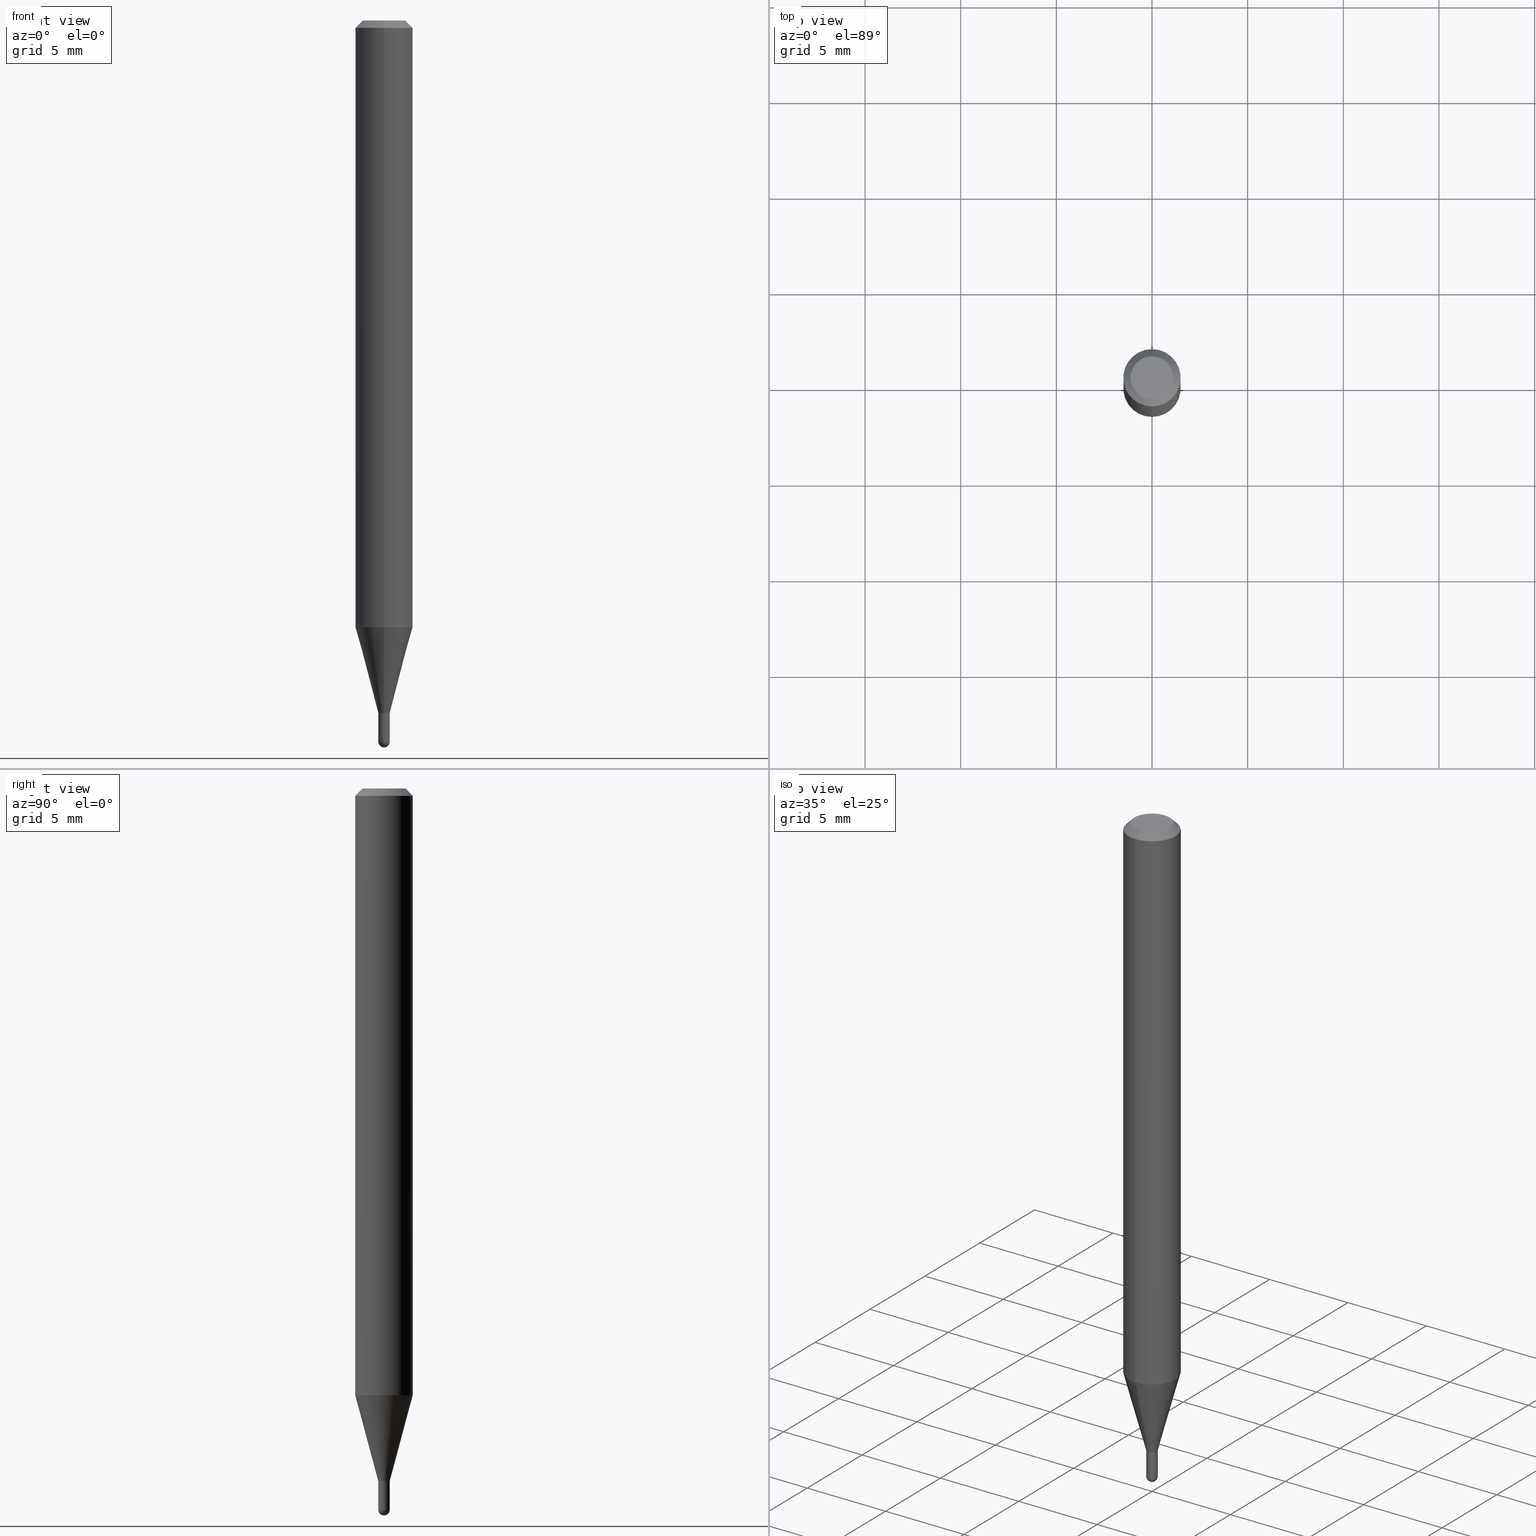
[diagram: canonical four-view strip — front | top / right | iso, engineering-drawing reading convention]
A machine part, canonical four-view strip (front | top / right | iso — engineering-drawing reading convention). The complete STEP part file that produces these views, byte-faithful:
ISO-10303-21;
HEADER;
FILE_DESCRIPTION (( 'STEP AP203' ),
    '1' );
FILE_NAME ('05026.STEP',
    '2024-03-08T20:55:54',
    ( '' ),
    ( '' ),
    'SwSTEP 2.0',
    'SolidWorks 2023',
    '' );
FILE_SCHEMA (( 'CONFIG_CONTROL_DESIGN' ));
ENDSEC;

DATA;
#1 = EDGE_CURVE ( 'NONE', #429, #307, #212, .T. ) ;
#2 = DIRECTION ( 'NONE',  ( -6.982962677686264344E-15, -1.000000000000000000, 3.491527206665560554E-15 ) ) ;
#3 = CARTESIAN_POINT ( 'NONE',  ( 8.206768598032710366E-17, 0.01129999999999502409, -1.425199999999999578 ) ) ;
#4 = VECTOR ( 'NONE', #305, 39.37007874015748143 ) ;
#5 =( CONVERSION_BASED_UNIT ( 'INCH', #327 ) LENGTH_UNIT ( ) NAMED_UNIT ( #169 ) );
#6 = PERSON_AND_ORGANIZATION ( #151, #403 ) ;
#7 = CONICAL_SURFACE ( 'NONE', #109, 0.01179999999999965452, 0.2617993877991572349 ) ;
#8 = LOCAL_TIME ( 15, 55, 54.00000000000000000, #59 ) ;
#9 = CARTESIAN_POINT ( 'NONE',  ( 3.668155165283920015E-31, -5.237290809998369353E-17, -0.01500000000000008098 ) ) ;
#10 = PERSON_AND_ORGANIZATION_ROLE ( 'creator' ) ;
#11 = CARTESIAN_POINT ( 'NONE',  ( 3.484991950697390441E-29, -4.975775422219090776E-15, -1.425100000000000033 ) ) ;
#12 = ORIENTED_EDGE ( 'NONE', *, *, #506, .T. ) ;
#13 = DIRECTION ( 'NONE',  ( -1.000000000000000000, 6.982962677686265922E-15, -4.883557194083112340E-29 ) ) ;
#14 = CARTESIAN_POINT ( 'NONE',  ( 3.629809349020597767E-29, -5.182405751244879809E-15, -1.484299999999999731 ) ) ;
#15 = EDGE_CURVE ( 'NONE', #500, #155, #346, .T. ) ;
#16 = DIRECTION ( 'NONE',  ( -6.982962677686265922E-15, -1.000000000000000000, 3.505890868245046092E-15 ) ) ;
#17 = DATE_TIME_ROLE ( 'creation_date' ) ;
#18 = APPROVAL ( #230, 'UNSPECIFIED' ) ;
#19 = AXIS2_PLACEMENT_3D ( 'NONE', #202, #280, #2 ) ;
#20 = AXIS2_PLACEMENT_3D ( 'NONE', #295, #13, #406 ) ;
#21 = LOCAL_TIME ( 15, 55, 54.00000000000000000, #484 ) ;
#22 = DIRECTION ( 'NONE',  ( -2.445436776855933528E-29, 3.491527206665560554E-15, 1.000000000000000000 ) ) ;
#23 = DIRECTION ( 'NONE',  ( -2.445468806185136597E-29, 3.491481338843145583E-15, 1.000000000000000000 ) ) ;
#24 = APPROVAL_ROLE ( '' ) ;
#25 = ORIENTED_EDGE ( 'NONE', *, *, #404, .F. ) ;
#26 = APPROVAL ( #383, 'UNSPECIFIED' ) ;
#27 = FACE_OUTER_BOUND ( 'NONE', #150, .T. ) ;
#28 = FACE_OUTER_BOUND ( 'NONE', #72, .T. ) ;
#29 = ORIENTED_EDGE ( 'NONE', *, *, #460, .T. ) ;
#30 = LINE ( 'NONE', #430, #388 ) ;
#31 = CIRCLE ( 'NONE', #20, 0.01180000000000006738 ) ;
#32 = ORIENTED_EDGE ( 'NONE', *, *, #407, .F. ) ;
#33 = EDGE_CURVE ( 'NONE', #373, #153, #74, .T. ) ;
#34 = ORIENTED_EDGE ( 'NONE', *, *, #194, .F. ) ;
#35 = DIRECTION ( 'NONE',  ( -2.445468806185136597E-29, 3.491481338843145583E-15, 1.000000000000000000 ) ) ;
#36 = ADVANCED_FACE ( 'NONE', ( #510 ), #361, .F. ) ;
#37 = DIRECTION ( 'NONE',  ( 1.839019923739647647E-15, 0.2588190451025316197, 0.9659258262890653146 ) ) ;
#38 = CARTESIAN_POINT ( 'NONE',  ( 3.485236494375076459E-29, -4.976124574939756323E-15, -1.425199999999999800 ) ) ;
#39 = CIRCLE ( 'NONE', #424, 0.01180000000000000319 ) ;
#40 = ADVANCED_FACE ( 'NONE', ( #160 ), #163, .T. ) ;
#41 = FACE_OUTER_BOUND ( 'NONE', #312, .T. ) ;
#42 = DIRECTION ( 'NONE',  ( 1.000000000000000000, -7.105427357601001070E-15, 4.926315508542082329E-29 ) ) ;
#43 = ADVANCED_FACE ( 'NONE', ( #470 ), #401, .T. ) ;
#44 = DIRECTION ( 'NONE',  ( -2.445468806185136597E-29, 3.491481338843145583E-15, 1.000000000000000000 ) ) ;
#45 = MECHANICAL_CONTEXT ( 'NONE', #308, 'mechanical' ) ;
#46 = CC_DESIGN_SECURITY_CLASSIFICATION ( #216, ( #334 ) ) ;
#47 = CYLINDRICAL_SURFACE ( 'NONE', #19, 0.01179999999999992687 ) ;
#48 = LINE ( 'NONE', #208, #326 ) ;
#49 = PERSON_AND_ORGANIZATION_ROLE ( 'design_owner' ) ;
#50 = ADVANCED_FACE ( 'NONE', ( #133 ), #47, .F. ) ;
#51 = FACE_OUTER_BOUND ( 'NONE', #222, .T. ) ;
#52 = AXIS2_PLACEMENT_3D ( 'NONE', #9, #144, #16 ) ;
#53 = AXIS2_PLACEMENT_3D ( 'NONE', #423, #93, #257 ) ;
#54 = LOCAL_TIME ( 15, 55, 54.00000000000000000, #412 ) ;
#55 = ORIENTED_EDGE ( 'NONE', *, *, #249, .F. ) ;
#56 = DIRECTION ( 'NONE',  ( -6.982962677686265133E-15, -1.000000000000000000, 0.000000000000000000 ) ) ;
#57 = APPROVAL_ROLE ( '' ) ;
#58 = CC_DESIGN_PERSON_AND_ORGANIZATION_ASSIGNMENT ( #262, #10, ( #334 ) ) ;
#59 = COORDINATED_UNIVERSAL_TIME_OFFSET ( 5, 0, .BEHIND. ) ;
#60 = SPHERICAL_SURFACE ( 'NONE', #198, 0.01180000000000006738 ) ;
#61 = CARTESIAN_POINT ( 'NONE',  ( -8.239895959666188559E-17, -0.01180000000000521951, -1.484299999999999731 ) ) ;
#62 = ORIENTED_EDGE ( 'NONE', *, *, #139, .T. ) ;
#63 = SPHERICAL_SURFACE ( 'NONE', #271, 0.01180000000000006738 ) ;
#64 = CALENDAR_DATE ( 2024, 8, 3 ) ;
#65 = AXIS2_PLACEMENT_3D ( 'NONE', #207, #44, #203 ) ;
#66 = ORIENTED_EDGE ( 'NONE', *, *, #407, .T. ) ;
#67 = CIRCLE ( 'NONE', #364, 0.01130000000000000102 ) ;
#68 = PLANE ( 'NONE',  #353 ) ;
#69 = CALENDAR_DATE ( 2024, 8, 3 ) ;
#70 = ORIENTED_EDGE ( 'NONE', *, *, #301, .T. ) ;
#71 = ORIENTED_EDGE ( 'NONE', *, *, #301, .F. ) ;
#72 = EDGE_LOOP ( 'NONE', ( #313, #190, #29, #25 ) ) ;
#73 = ORIENTED_EDGE ( 'NONE', *, *, #181, .T. ) ;
#74 = CIRCLE ( 'NONE', #362, 0.05904999999999999832 ) ;
#75 = AXIS2_PLACEMENT_3D ( 'NONE', #11, #99, #261 ) ;
#76 = ORIENTED_EDGE ( 'NONE', *, *, #15, .T. ) ;
#77 = ORIENTED_EDGE ( 'NONE', *, *, #444, .T. ) ;
#78 = LINE ( 'NONE', #358, #298 ) ;
#79 = CARTESIAN_POINT ( 'NONE',  ( -7.890747825781996314E-17, -0.01130000000000497794, -1.425199999999999578 ) ) ;
#80 = EDGE_CURVE ( 'NONE', #153, #373, #224, .T. ) ;
#81 = CARTESIAN_POINT ( 'NONE',  ( 3.053765095120501030E-29, -4.360081607215893074E-15, -1.248760599342374711 ) ) ;
#82 = CIRCLE ( 'NONE', #172, 0.01180000000000000319 ) ;
#83 = CYLINDRICAL_SURFACE ( 'NONE', #489, 0.01180000000000000319 ) ;
#84 = DIRECTION ( 'NONE',  ( -2.445436776855933528E-29, 3.491527206665560554E-15, 1.000000000000000000 ) ) ;
#85 = CARTESIAN_POINT ( 'NONE',  ( 3.075995059520799729E-16, 0.04404999999999999888, -1.940518418858048862E-16 ) ) ;
#86 = DIRECTION ( 'NONE',  ( 1.000000000000000000, 0.000000000000000000, 0.000000000000000000 ) ) ;
#87 = CIRCLE ( 'NONE', #53, 0.04404999999999999888 ) ;
#88 = DIRECTION ( 'NONE',  ( 0.000000000000000000, 0.000000000000000000, 1.000000000000000000 ) ) ;
#89 = EDGE_CURVE ( 'NONE', #500, #394, #325, .T. ) ;
#90 = ORIENTED_EDGE ( 'NONE', *, *, #181, .F. ) ;
#91 = FACE_OUTER_BOUND ( 'NONE', #349, .T. ) ;
#92 = EDGE_LOOP ( 'NONE', ( #32, #55 ) ) ;
#93 = DIRECTION ( 'NONE',  ( -2.445436776855933528E-29, 3.491527206665560554E-15, 1.000000000000000000 ) ) ;
#94 = EDGE_CURVE ( 'NONE', #95, #236, #288, .T. ) ;
#95 = VERTEX_POINT ( 'NONE', #363 ) ;
#96 = CARTESIAN_POINT ( 'NONE',  ( 3.668155165283920015E-31, -5.237290809998369353E-17, -0.01500000000000008098 ) ) ;
#97 = CONICAL_SURFACE ( 'NONE', #371, 0.01130000000000000102, 0.7853981633980202659 ) ;
#98 = EDGE_CURVE ( 'NONE', #500, #373, #397, .T. ) ;
#99 = DIRECTION ( 'NONE',  ( -2.445436776855933528E-29, 3.491527206665560554E-15, 1.000000000000000000 ) ) ;
#100 = EDGE_LOOP ( 'NONE', ( #302, #235, #454, #140 ) ) ;
#101 = DATE_AND_TIME ( #176, #8 ) ;
#102 = CARTESIAN_POINT ( 'NONE',  ( 0.000000000000000000, 0.000000000000000000, 0.000000000000000000 ) ) ;
#103 = DIRECTION ( 'NONE',  ( -6.982962677686266711E-15, -1.000000000000000000, 0.000000000000000000 ) ) ;
#104 = ADVANCED_BREP_SHAPE_REPRESENTATION ( '05026', ( #256, #255, #137 ), #260 ) ;
#105 = CARTESIAN_POINT ( 'NONE',  ( 3.484013775986648048E-29, -4.974378811336423855E-15, -1.424700000000000077 ) ) ;
#106 = EDGE_LOOP ( 'NONE', ( #384, #76, #504, #427 ) ) ;
#107 = VERTEX_POINT ( 'NONE', #451 ) ;
#108 = ORIENTED_EDGE ( 'NONE', *, *, #417, .F. ) ;
#109 = AXIS2_PLACEMENT_3D ( 'NONE', #457, #22, #103 ) ;
#110 = APPROVAL_DATE_TIME ( #306, #18 ) ;
#111 = ORIENTED_EDGE ( 'NONE', *, *, #460, .F. ) ;
#112 = PRODUCT_DEFINITION_SHAPE ( 'NONE', 'NONE',  #445 ) ;
#113 = ORIENTED_EDGE ( 'NONE', *, *, #89, .T. ) ;
#114 = ORIENTED_EDGE ( 'NONE', *, *, #154, .F. ) ;
#115 = DIRECTION ( 'NONE',  ( -2.445436776855933528E-29, 3.491527206665560554E-15, 1.000000000000000000 ) ) ;
#116 = ADVANCED_FACE ( 'NONE', ( #473 ), #205, .T. ) ;
#117 = DIRECTION ( 'NONE',  ( -6.982962677686265922E-15, -1.000000000000000000, 0.000000000000000000 ) ) ;
#118 = EDGE_LOOP ( 'NONE', ( #505, #292, #114, #183 ) ) ;
#119 = CYLINDRICAL_SURFACE ( 'NONE', #476, 0.05904999999999999832 ) ;
#120 = AXIS2_PLACEMENT_3D ( 'NONE', #440, #199, #439 ) ;
#121 = CC_DESIGN_DATE_AND_TIME_ASSIGNMENT ( #495, #147, ( #216 ) ) ;
#122 = CONICAL_SURFACE ( 'NONE', #180, 0.01130000000000000102, 0.7853981633980202659 ) ;
#123 = DIRECTION ( 'NONE',  ( -2.445436776855933528E-29, 3.491527206665560554E-15, 1.000000000000000000 ) ) ;
#124 = CARTESIAN_POINT ( 'NONE',  ( -3.536586717851222218E-16, -0.04404999999999999888, 7.330163658924400342E-17 ) ) ;
#125 = DIRECTION ( 'NONE',  ( -4.937700262167370586E-15, -0.7071067811869493624, 0.7071067811861454500 ) ) ;
#126 = FACE_OUTER_BOUND ( 'NONE', #92, .T. ) ;
#127 = DIRECTION ( 'NONE',  ( -1.807323732225377077E-15, -0.2588190451025249028, 0.9659258262890670910 ) ) ;
#128 = ADVANCED_FACE ( 'NONE', ( #408 ), #83, .T. ) ;
#129 = AXIS2_PLACEMENT_3D ( 'NONE', #102, #471, #365 ) ;
#130 = VECTOR ( 'NONE', #187, 39.37007874015748143 ) ;
#131 = APPROVAL_PERSON_ORGANIZATION ( #6, #431, #171 ) ;
#132 = CC_DESIGN_APPROVAL ( #431, ( #445 ) ) ;
#133 = FACE_OUTER_BOUND ( 'NONE', #391, .T. ) ;
#134 = ADVANCED_FACE ( 'NONE', ( #419 ), #63, .T. ) ;
#135 = ADVANCED_FACE ( 'NONE', ( #413 ), #7, .T. ) ;
#136 = CLOSED_SHELL ( 'NONE', ( #128, #366, #175, #134, #116 ) ) ;
#137 = AXIS2_PLACEMENT_3D ( 'NONE', #446, #88, #86 ) ;
#138 = EDGE_LOOP ( 'NONE', ( #290, #113, #375, #157 ) ) ;
#139 = EDGE_CURVE ( 'NONE', #193, #95, #487, .T. ) ;
#140 = ORIENTED_EDGE ( 'NONE', *, *, #1, .F. ) ;
#141 = AXIS2_PLACEMENT_3D ( 'NONE', #402, #512, #283 ) ;
#142 = AXIS2_PLACEMENT_3D ( 'NONE', #192, #195, #156 ) ;
#143 = ORIENTED_EDGE ( 'NONE', *, *, #1, .T. ) ;
#144 = DIRECTION ( 'NONE',  ( -2.445436776855933528E-29, 3.491527206665560554E-15, 1.000000000000000000 ) ) ;
#145 = EDGE_LOOP ( 'NONE', ( #240, #196, #468, #315 ) ) ;
#146 = DIRECTION ( 'NONE',  ( 1.000000000000000000, -6.982962677686297476E-15, 0.000000000000000000 ) ) ;
#147 = DATE_TIME_ROLE ( 'classification_date' ) ;
#148 = ORIENTED_EDGE ( 'NONE', *, *, #194, .T. ) ;
#149 = CARTESIAN_POINT ( 'NONE',  ( 3.629809349020597767E-29, -5.182405751244879809E-15, -1.484299999999999731 ) ) ;
#150 = EDGE_LOOP ( 'NONE', ( #265, #269, #73, #276 ) ) ;
#151 = PERSON ( 'UNSPECIFIED', 'UNSPECIFIED', 'UNSPECIFIED', ('UNSPECIFIED'), ('UNSPECIFIED'), ('UNSPECIFIED') ) ;
#152 = CIRCLE ( 'NONE', #75, 0.01179999999999965452 ) ;
#153 = VERTEX_POINT ( 'NONE', #266 ) ;
#154 = EDGE_CURVE ( 'NONE', #396, #459, #215, .T. ) ;
#155 = VERTEX_POINT ( 'NONE', #450 ) ;
#156 = DIRECTION ( 'NONE',  ( -6.982962677686265133E-15, -1.000000000000000000, 3.491527206665560554E-15 ) ) ;
#157 = ORIENTED_EDGE ( 'NONE', *, *, #33, .F. ) ;
#158 = VECTOR ( 'NONE', #229, 39.37007874015748143 ) ;
#159 = LINE ( 'NONE', #322, #463 ) ;
#160 = FACE_OUTER_BOUND ( 'NONE', #467, .T. ) ;
#161 = DIRECTION ( 'NONE',  ( -2.445436776855933528E-29, 3.491527206665560554E-15, 1.000000000000000000 ) ) ;
#162 = CARTESIAN_POINT ( 'NONE',  ( -8.239895959669740898E-17, -0.01179999999999992687, 4.120002103865335861E-17 ) ) ;
#163 = CONICAL_SURFACE ( 'NONE', #141, 0.01179999999999965452, 0.2617993877991572349 ) ;
#164 = CIRCLE ( 'NONE', #278, 0.01180000000000019922 ) ;
#165 = APPROVAL_PERSON_ORGANIZATION ( #499, #26, #57 ) ;
#166 = DIRECTION ( 'NONE',  ( -6.982962677686265922E-15, -1.000000000000000000, 4.626330217890369336E-15 ) ) ;
#167 = EDGE_CURVE ( 'NONE', #459, #396, #285, .T. ) ;
#168 = CARTESIAN_POINT ( 'NONE',  ( 0.000000000000000000, 0.000000000000000000, 0.000000000000000000 ) ) ;
#169 = DIMENSIONAL_EXPONENTS ( 1.000000000000000000, 0.000000000000000000, 0.000000000000000000, 0.000000000000000000, 0.000000000000000000, 0.000000000000000000, 0.000000000000000000 ) ;
#170 = ORIENTED_EDGE ( 'NONE', *, *, #465, .F. ) ;
#171 = APPROVAL_ROLE ( '' ) ;
#172 = AXIS2_PLACEMENT_3D ( 'NONE', #149, #501, #477 ) ;
#173 = EDGE_LOOP ( 'NONE', ( #503, #62, #418, #410, #77 ) ) ;
#174 = FACE_OUTER_BOUND ( 'NONE', #106, .T. ) ;
#175 = ADVANCED_FACE ( 'NONE', ( #51 ), #68, .F. ) ;
#176 = CALENDAR_DATE ( 2024, 8, 3 ) ;
#177 =( LENGTH_UNIT ( ) NAMED_UNIT ( * ) SI_UNIT ( $, .METRE. ) );
#178 = DIRECTION ( 'NONE',  ( -2.445436776855933528E-29, 3.491527206665560554E-15, 1.000000000000000000 ) ) ;
#179 = PERSON_AND_ORGANIZATION_ROLE ( 'design_supplier' ) ;
#180 = AXIS2_PLACEMENT_3D ( 'NONE', #201, #324, #220 ) ;
#181 = EDGE_CURVE ( 'NONE', #232, #459, #270, .T. ) ;
#182 = CARTESIAN_POINT ( 'NONE',  ( 4.123439461173743285E-16, 0.05904999999999994975, -0.01500000000000028741 ) ) ;
#183 = ORIENTED_EDGE ( 'NONE', *, *, #282, .F. ) ;
#184 = DIRECTION ( 'NONE',  ( -6.982962677686265922E-15, -1.000000000000000000, 0.000000000000000000 ) ) ;
#185 = EDGE_CURVE ( 'NONE', #428, #193, #39, .T. ) ;
#186 = DIRECTION ( 'NONE',  ( 1.000000000000000000, -6.982962677686297476E-15, 0.000000000000000000 ) ) ;
#187 = DIRECTION ( 'NONE',  ( -2.445468806185136877E-29, 3.491481338843145188E-15, 1.000000000000000000 ) ) ;
#188 = ORIENTED_EDGE ( 'NONE', *, *, #98, .T. ) ;
#189 = CARTESIAN_POINT ( 'NONE',  ( -8.239895959666068997E-17, -0.01180000000000462970, -1.425100000000000033 ) ) ;
#190 = ORIENTED_EDGE ( 'NONE', *, *, #249, .T. ) ;
#191 = CARTESIAN_POINT ( 'NONE',  ( 3.485236494375075899E-29, -4.976124574939755534E-15, -1.425199999999999578 ) ) ;
#192 = CARTESIAN_POINT ( 'NONE',  ( 1.968579952300760536E-45, -2.810684180022627674E-31, -8.050013686437390955E-17 ) ) ;
#193 = VERTEX_POINT ( 'NONE', #217 ) ;
#194 = EDGE_CURVE ( 'NONE', #294, #232, #87, .T. ) ;
#195 = DIRECTION ( 'NONE',  ( -2.445436776855933528E-29, 3.491527206665560554E-15, 1.000000000000000000 ) ) ;
#196 = ORIENTED_EDGE ( 'NONE', *, *, #33, .T. ) ;
#197 = DIRECTION ( 'NONE',  ( 1.000000000000000000, -6.982962677686298265E-15, 0.000000000000000000 ) ) ;
#198 = AXIS2_PLACEMENT_3D ( 'NONE', #493, #461, #360 ) ;
#199 = DIRECTION ( 'NONE',  ( -2.445436776855933528E-29, 3.491527206665560554E-15, 1.000000000000000000 ) ) ;
#200 = APPLICATION_CONTEXT ( 'configuration controlled 3d designs of mechanical parts and assemblies' ) ;
#201 = CARTESIAN_POINT ( 'NONE',  ( 3.485236494375075899E-29, -4.976124574939755534E-15, -1.425199999999999578 ) ) ;
#202 = CARTESIAN_POINT ( 'NONE',  ( 0.000000000000000000, 0.000000000000000000, 0.000000000000000000 ) ) ;
#203 = DIRECTION ( 'NONE',  ( 1.000000000000000000, -6.982962677686298265E-15, 0.000000000000000000 ) ) ;
#204 = AXIS2_PLACEMENT_3D ( 'NONE', #14, #299, #258 ) ;
#205 = CYLINDRICAL_SURFACE ( 'NONE', #129, 0.01180000000000000319 ) ;
#206 = CC_DESIGN_DATE_AND_TIME_ASSIGNMENT ( #101, #17, ( #445 ) ) ;
#207 = CARTESIAN_POINT ( 'NONE',  ( 3.485282142575056435E-29, -4.976059204119250988E-15, -1.425199999999999800 ) ) ;
#208 = CARTESIAN_POINT ( 'NONE',  ( -7.890747825781996314E-17, -0.01130000000000497794, -1.425199999999999578 ) ) ;
#209 = PERSON_AND_ORGANIZATION ( #151, #403 ) ;
#210 = APPROVAL_STATUS ( 'not_yet_approved' ) ;
#211 = CC_DESIGN_PERSON_AND_ORGANIZATION_ASSIGNMENT ( #209, #49, ( #392 ) ) ;
#212 = CIRCLE ( 'NONE', #214, 0.01180000000000000319 ) ;
#213 = DIRECTION ( 'NONE',  ( -1.000000000000000000, 6.982962677686265922E-15, -4.876176775795935793E-29 ) ) ;
#214 = AXIS2_PLACEMENT_3D ( 'NONE', #228, #23, #186 ) ;
#215 = CIRCLE ( 'NONE', #52, 0.05904999999999999832 ) ;
#216 = SECURITY_CLASSIFICATION ( '', '', #345 ) ;
#217 = CARTESIAN_POINT ( 'NONE',  ( -0.01180000000000000319, -4.995388434862373344E-15, -1.484299999999999731 ) ) ;
#218 = CALENDAR_DATE ( 2024, 8, 3 ) ;
#219 = CARTESIAN_POINT ( 'NONE',  ( 3.657152236601735168E-29, -5.225772855877719767E-15, -1.496099999999999985 ) ) ;
#220 = DIRECTION ( 'NONE',  ( -6.982962677686265922E-15, -1.000000000000000000, 0.000000000000000000 ) ) ;
#221 = EDGE_CURVE ( 'NONE', #435, #429, #31, .T. ) ;
#222 = EDGE_LOOP ( 'NONE', ( #389, #434 ) ) ;
#223 = PERSON_AND_ORGANIZATION ( #151, #403 ) ;
#224 = CIRCLE ( 'NONE', #482, 0.05904999999999999832 ) ;
#225 = EDGE_LOOP ( 'NONE', ( #462, #272, #108, #421 ) ) ;
#226 = CONICAL_SURFACE ( 'NONE', #490, 0.05904999999999999832, 0.7853981633974483900 ) ;
#227 = DIRECTION ( 'NONE',  ( -6.982962677686265133E-15, -1.000000000000000000, 0.000000000000000000 ) ) ;
#228 = CARTESIAN_POINT ( 'NONE',  ( 3.629809349020597767E-29, -5.182405751244879809E-15, -1.484299999999999731 ) ) ;
#229 = DIRECTION ( 'NONE',  ( -2.445468806185136877E-29, 3.491481338843145188E-15, 1.000000000000000000 ) ) ;
#230 = APPROVAL_STATUS ( 'not_yet_approved' ) ;
#231 = DIRECTION ( 'NONE',  ( -2.445468806185136597E-29, 3.491481338843145583E-15, 1.000000000000000000 ) ) ;
#232 = VERTEX_POINT ( 'NONE', #372 ) ;
#233 = DIRECTION ( 'NONE',  ( -2.445436776855933528E-29, 3.491527206665560554E-15, 1.000000000000000000 ) ) ;
#234 = DIRECTION ( 'NONE',  ( 6.982962677686265922E-15, 1.000000000000000000, -3.505890868245046092E-15 ) ) ;
#235 = ORIENTED_EDGE ( 'NONE', *, *, #385, .T. ) ;
#236 = VERTEX_POINT ( 'NONE', #297 ) ;
#237 = AXIS2_PLACEMENT_3D ( 'NONE', #96, #178, #377 ) ;
#238 = DIRECTION ( 'NONE',  ( -4.851104656540964275E-15, -0.7071067811865500152, -0.7071067811865450192 ) ) ;
#239 = LOCAL_TIME ( 15, 55, 54.00000000000000000, #348 ) ;
#240 = ORIENTED_EDGE ( 'NONE', *, *, #339, .F. ) ;
#241 = CARTESIAN_POINT ( 'NONE',  ( 4.195754854663694697E-16, 0.05904999999999562682, -1.248760599342375155 ) ) ;
#242 = DIRECTION ( 'NONE',  ( 2.445436776855933528E-29, -3.491527206665560554E-15, -1.000000000000000000 ) ) ;
#243 = ADVANCED_FACE ( 'NONE', ( #174 ), #335, .F. ) ;
#244 = CARTESIAN_POINT ( 'NONE',  ( 8.384404281972835410E-17, 0.01179999999999485107, -1.484299999999999731 ) ) ;
#245 = DIRECTION ( 'NONE',  ( -6.982962677686265922E-15, -1.000000000000000000, 3.491527206665560554E-15 ) ) ;
#246 = DIRECTION ( 'NONE',  ( -6.982962677686266711E-15, -1.000000000000000000, 0.000000000000000000 ) ) ;
#247 = ORIENTED_EDGE ( 'NONE', *, *, #359, .T. ) ;
#248 = DIRECTION ( 'NONE',  ( -2.445436776855933247E-29, 3.491527206665560554E-15, 1.000000000000000000 ) ) ;
#249 = EDGE_CURVE ( 'NONE', #387, #464, #67, .T. ) ;
#250 = DIRECTION ( 'NONE',  ( 6.982962677686265922E-15, 1.000000000000000000, -3.491527206665560554E-15 ) ) ;
#251 = CONICAL_SURFACE ( 'NONE', #289, 0.05904999999999999832, 0.7853981633974483900 ) ;
#252 = CARTESIAN_POINT ( 'NONE',  ( 2.517097641430470322E-16, 0.01179999999999467933, -1.425100000000000033 ) ) ;
#253 = APPLICATION_PROTOCOL_DEFINITION ( 'international standard', 'config_control_design', 1994, #308 ) ;
#254 = CC_DESIGN_PERSON_AND_ORGANIZATION_ASSIGNMENT ( #342, #492, ( #216 ) ) ;
#255 = MANIFOLD_SOLID_BREP ( 'Body-Move/Copy2[2]', #508 ) ;
#256 = MANIFOLD_SOLID_BREP ( 'Body-Move/Copy2[1]', #136 ) ;
#257 = DIRECTION ( 'NONE',  ( -6.982962677686265133E-15, -1.000000000000000000, 3.491527206665560554E-15 ) ) ;
#258 = DIRECTION ( 'NONE',  ( 1.000000000000000000, -6.982962677686297476E-15, 0.000000000000000000 ) ) ;
#259 = CIRCLE ( 'NONE', #204, 0.01180000000000000319 ) ;
#260 =( GEOMETRIC_REPRESENTATION_CONTEXT ( 3 ) GLOBAL_UNCERTAINTY_ASSIGNED_CONTEXT ( ( #369 ) ) GLOBAL_UNIT_ASSIGNED_CONTEXT ( ( #5, #367, #405 ) ) REPRESENTATION_CONTEXT ( 'NONE', 'WORKASPACE' ) );
#261 = DIRECTION ( 'NONE',  ( -6.982962677686266711E-15, -1.000000000000000000, 0.000000000000000000 ) ) ;
#262 = PERSON_AND_ORGANIZATION ( #151, #403 ) ;
#263 = CARTESIAN_POINT ( 'NONE',  ( 4.195754854663698641E-16, 0.05904999999999994975, -0.01500000000000028741 ) ) ;
#264 = LINE ( 'NONE', #415, #130 ) ;
#265 = ORIENTED_EDGE ( 'NONE', *, *, #359, .F. ) ;
#266 = CARTESIAN_POINT ( 'NONE',  ( -4.123439461173436122E-16, -0.05905000000000436289, -1.248760599342374489 ) ) ;
#267 = EDGE_CURVE ( 'NONE', #236, #95, #273, .T. ) ;
#268 = PERSON_AND_ORGANIZATION_ROLE ( 'creator' ) ;
#269 = ORIENTED_EDGE ( 'NONE', *, *, #368, .F. ) ;
#270 = LINE ( 'NONE', #182, #4 ) ;
#271 = AXIS2_PLACEMENT_3D ( 'NONE', #374, #344, #56 ) ;
#272 = ORIENTED_EDGE ( 'NONE', *, *, #221, .T. ) ;
#273 = CIRCLE ( 'NONE', #284, 0.01180000000000000146 ) ;
#274 = ORIENTED_EDGE ( 'NONE', *, *, #465, .T. ) ;
#275 = DIRECTION ( 'NONE',  ( -2.445436776855933528E-29, 3.491527206665560554E-15, 1.000000000000000000 ) ) ;
#276 = ORIENTED_EDGE ( 'NONE', *, *, #167, .T. ) ;
#277 = CARTESIAN_POINT ( 'NONE',  ( 0.000000000000000000, 0.000000000000000000, 0.000000000000000000 ) ) ;
#278 = AXIS2_PLACEMENT_3D ( 'NONE', #323, #475, #400 ) ;
#279 = DIRECTION ( 'NONE',  ( -6.982962677686265922E-15, -1.000000000000000000, 0.000000000000000000 ) ) ;
#280 = DIRECTION ( 'NONE',  ( -2.445436776855933528E-29, 3.491527206665560554E-15, 1.000000000000000000 ) ) ;
#281 = ADVANCED_FACE ( 'NONE', ( #28 ), #97, .T. ) ;
#282 = EDGE_CURVE ( 'NONE', #153, #396, #78, .T. ) ;
#283 = DIRECTION ( 'NONE',  ( -6.982962677686266711E-15, -1.000000000000000000, 0.000000000000000000 ) ) ;
#284 = AXIS2_PLACEMENT_3D ( 'NONE', #432, #35, #197 ) ;
#285 = CIRCLE ( 'NONE', #237, 0.05904999999999999832 ) ;
#286 = DIRECTION ( 'NONE',  ( 2.445436776855933247E-29, -3.491527206665560554E-15, -1.000000000000000000 ) ) ;
#287 = EDGE_CURVE ( 'NONE', #387, #155, #159, .T. ) ;
#288 = CIRCLE ( 'NONE', #65, 0.01180000000000000146 ) ;
#289 = AXIS2_PLACEMENT_3D ( 'NONE', #498, #422, #351 ) ;
#290 = ORIENTED_EDGE ( 'NONE', *, *, #98, .F. ) ;
#291 = DIRECTION ( 'NONE',  ( -2.445436776855933247E-29, 3.491527206665560554E-15, 1.000000000000000000 ) ) ;
#292 = ORIENTED_EDGE ( 'NONE', *, *, #339, .T. ) ;
#293 = CALENDAR_DATE ( 2024, 8, 3 ) ;
#294 = VERTEX_POINT ( 'NONE', #124 ) ;
#295 = CARTESIAN_POINT ( 'NONE',  ( 3.628800252799366100E-29, -5.183850834467873739E-15, -1.484299999999999731 ) ) ;
#296 = ORIENTED_EDGE ( 'NONE', *, *, #15, .F. ) ;
#297 = CARTESIAN_POINT ( 'NONE',  ( 0.01180000000000000146, -5.058458163715949112E-15, -1.425199999999999800 ) ) ;
#298 = VECTOR ( 'NONE', #507, 39.37007874015748143 ) ;
#299 = DIRECTION ( 'NONE',  ( -2.445468806185136597E-29, 3.491481338843145583E-15, 1.000000000000000000 ) ) ;
#300 = CC_DESIGN_APPROVAL ( #18, ( #216 ) ) ;
#301 = EDGE_CURVE ( 'NONE', #394, #500, #152, .T. ) ;
#302 = ORIENTED_EDGE ( 'NONE', *, *, #221, .F. ) ;
#303 = APPROVAL_DATE_TIME ( #376, #26 ) ;
#304 = DESIGN_CONTEXT ( 'detailed design', #200, 'design' ) ;
#305 = DIRECTION ( 'NONE',  ( 4.937700262164548042E-15, 0.7071067811865451302, -0.7071067811865499042 ) ) ;
#306 = DATE_AND_TIME ( #69, #239 ) ;
#307 = VERTEX_POINT ( 'NONE', #456 ) ;
#308 = APPLICATION_CONTEXT ( 'configuration controlled 3d designs of mechanical parts and assemblies' ) ;
#309 = EDGE_CURVE ( 'NONE', #307, #236, #264, .T. ) ;
#310 = EDGE_LOOP ( 'NONE', ( #318, #481, #143, #380, #486 ) ) ;
#311 = AXIS2_PLACEMENT_3D ( 'NONE', #485, #338, #455 ) ;
#312 = EDGE_LOOP ( 'NONE', ( #66, #496, #170, #111 ) ) ;
#313 = ORIENTED_EDGE ( 'NONE', *, *, #287, .F. ) ;
#314 = CARTESIAN_POINT ( 'NONE',  ( 3.485236494375075899E-29, -4.976124574939755534E-15, -1.425199999999999578 ) ) ;
#315 = ORIENTED_EDGE ( 'NONE', *, *, #167, .F. ) ;
#316 = FACE_OUTER_BOUND ( 'NONE', #118, .T. ) ;
#317 = DIRECTION ( 'NONE',  ( -2.445436776855933528E-29, 3.491527206665560554E-15, 1.000000000000000000 ) ) ;
#318 = ORIENTED_EDGE ( 'NONE', *, *, #139, .F. ) ;
#319 = CARTESIAN_POINT ( 'NONE',  ( 3.628800252799366100E-29, -5.183850834467873739E-15, -1.484299999999999731 ) ) ;
#320 = CIRCLE ( 'NONE', #142, 0.04404999999999999888 ) ;
#321 = PRODUCT_RELATED_PRODUCT_CATEGORY ( 'detail', '', ( #392 ) ) ;
#322 = CARTESIAN_POINT ( 'NONE',  ( 8.029132914092616136E-17, 0.01129999999999502409, -1.425199999999999578 ) ) ;
#323 = CARTESIAN_POINT ( 'NONE',  ( 3.484013775986648048E-29, -4.974378811336423855E-15, -1.424700000000000077 ) ) ;
#324 = DIRECTION ( 'NONE',  ( -2.445436776855933528E-29, 3.491527206665560554E-15, 1.000000000000000000 ) ) ;
#325 = CIRCLE ( 'NONE', #398, 0.01179999999999965452 ) ;
#326 = VECTOR ( 'NONE', #125, 39.37007874015748854 ) ;
#327 = LENGTH_MEASURE_WITH_UNIT ( LENGTH_MEASURE( 0.02539999999999999897 ), #177 );
#328 = CARTESIAN_POINT ( 'NONE',  ( 8.384404281972420026E-17, 0.01179999999999467933, -1.425100000000000033 ) ) ;
#329 = DIRECTION ( 'NONE',  ( -2.445436776855933247E-29, 3.491527206665560554E-15, 1.000000000000000000 ) ) ;
#330 = AXIS2_PLACEMENT_3D ( 'NONE', #85, #286, #250 ) ;
#331 = CC_DESIGN_PERSON_AND_ORGANIZATION_ASSIGNMENT ( #336, #268, ( #445 ) ) ;
#332 = CIRCLE ( 'NONE', #399, 0.01180000000000019922 ) ;
#333 = LINE ( 'NONE', #162, #341 ) ;
#334 = PRODUCT_DEFINITION_FORMATION_WITH_SPECIFIED_SOURCE ( 'ANY', '', #392, .NOT_KNOWN. ) ;
#335 = CYLINDRICAL_SURFACE ( 'NONE', #311, 0.01179999999999992687 ) ;
#336 = PERSON_AND_ORGANIZATION ( #151, #403 ) ;
#337 = ORIENTED_EDGE ( 'NONE', *, *, #80, .F. ) ;
#338 = DIRECTION ( 'NONE',  ( -2.445436776855933528E-29, 3.491527206665560554E-15, 1.000000000000000000 ) ) ;
#339 = EDGE_CURVE ( 'NONE', #373, #459, #347, .T. ) ;
#340 = DIRECTION ( 'NONE',  ( 2.438088387897960049E-29, -3.491481338843145188E-15, -1.000000000000000000 ) ) ;
#341 = VECTOR ( 'NONE', #248, 39.37007874015748143 ) ;
#342 = PERSON_AND_ORGANIZATION ( #151, #403 ) ;
#343 = DIRECTION ( 'NONE',  ( -6.982962677686265922E-15, -1.000000000000000000, 3.491527206665560159E-15 ) ) ;
#344 = DIRECTION ( 'NONE',  ( 1.000000000000000000, -6.982962677686265133E-15, 4.883557194083112340E-29 ) ) ;
#345 = SECURITY_CLASSIFICATION_LEVEL ( 'unclassified' ) ;
#346 = LINE ( 'NONE', #466, #352 ) ;
#347 = LINE ( 'NONE', #497, #378 ) ;
#348 = COORDINATED_UNIVERSAL_TIME_OFFSET ( 5, 0, .BEHIND. ) ;
#349 = EDGE_LOOP ( 'NONE', ( #34, #247, #448, #90 ) ) ;
#350 = CARTESIAN_POINT ( 'NONE',  ( 3.053765095120501030E-29, -4.360081607215893074E-15, -1.248760599342374711 ) ) ;
#351 = DIRECTION ( 'NONE',  ( 6.982962677686265922E-15, 1.000000000000000000, -3.505890868245046092E-15 ) ) ;
#352 = VECTOR ( 'NONE', #386, 39.37007874015748143 ) ;
#353 = AXIS2_PLACEMENT_3D ( 'NONE', #411, #340, #213 ) ;
#354 = ORIENTED_EDGE ( 'NONE', *, *, #368, .T. ) ;
#355 = LOCAL_TIME ( 15, 55, 54.00000000000000000, #416 ) ;
#356 = ORIENTED_EDGE ( 'NONE', *, *, #426, .F. ) ;
#357 = ADVANCED_FACE ( 'NONE', ( #91 ), #226, .T. ) ;
#358 = CARTESIAN_POINT ( 'NONE',  ( -4.123439461173739834E-16, -0.05904999999999999832, 2.061746815536013292E-16 ) ) ;
#359 = EDGE_CURVE ( 'NONE', #294, #396, #30, .T. ) ;
#360 = DIRECTION ( 'NONE',  ( -6.982962677686265133E-15, -1.000000000000000000, 0.000000000000000000 ) ) ;
#361 = PLANE ( 'NONE',  #330 ) ;
#362 = AXIS2_PLACEMENT_3D ( 'NONE', #350, #275, #166 ) ;
#363 = CARTESIAN_POINT ( 'NONE',  ( -0.01180000000000000146, -4.995388434862373344E-15, -1.425199999999999800 ) ) ;
#364 = AXIS2_PLACEMENT_3D ( 'NONE', #314, #437, #117 ) ;
#365 = DIRECTION ( 'NONE',  ( 1.000000000000000000, -6.982962677686265922E-15, 4.876176775795935793E-29 ) ) ;
#366 = ADVANCED_FACE ( 'NONE', ( #443 ), #60, .T. ) ;
#367 =( NAMED_UNIT ( * ) PLANE_ANGLE_UNIT ( ) SI_UNIT ( $, .RADIAN. ) );
#368 = EDGE_CURVE ( 'NONE', #232, #294, #320, .T. ) ;
#369 = UNCERTAINTY_MEASURE_WITH_UNIT (LENGTH_MEASURE( 1.000000000000000082E-05 ), #5, 'distance_accuracy_value', 'NONE');
#370 = APPLICATION_PROTOCOL_DEFINITION ( 'international standard', 'config_control_design', 1994, #200 ) ;
#371 = AXIS2_PLACEMENT_3D ( 'NONE', #191, #123, #279 ) ;
#372 = CARTESIAN_POINT ( 'NONE',  ( 3.599717260347271507E-16, 0.04404999999999999888, -2.343019103179918348E-16 ) ) ;
#373 = VERTEX_POINT ( 'NONE', #241 ) ;
#374 = CARTESIAN_POINT ( 'NONE',  ( 3.628800252799366100E-29, -5.183850834467873739E-15, -1.484299999999999731 ) ) ;
#375 = ORIENTED_EDGE ( 'NONE', *, *, #426, .T. ) ;
#376 = DATE_AND_TIME ( #218, #54 ) ;
#377 = DIRECTION ( 'NONE',  ( -6.982962677686265922E-15, -1.000000000000000000, 3.505890868245046092E-15 ) ) ;
#378 = VECTOR ( 'NONE', #291, 39.37007874015748143 ) ;
#379 = SHAPE_DEFINITION_REPRESENTATION ( #112, #104 ) ;
#380 = ORIENTED_EDGE ( 'NONE', *, *, #309, .T. ) ;
#381 = ADVANCED_FACE ( 'NONE', ( #126 ), #438, .F. ) ;
#382 = CARTESIAN_POINT ( 'NONE',  ( 3.485236494375075899E-29, -4.976124574939755534E-15, -1.425199999999999578 ) ) ;
#383 = APPROVAL_STATUS ( 'not_yet_approved' ) ;
#384 = ORIENTED_EDGE ( 'NONE', *, *, #89, .F. ) ;
#385 = EDGE_CURVE ( 'NONE', #435, #428, #409, .T. ) ;
#386 = DIRECTION ( 'NONE',  ( -2.445436776855933247E-29, 3.491527206665560554E-15, 1.000000000000000000 ) ) ;
#387 = VERTEX_POINT ( 'NONE', #3 ) ;
#388 = VECTOR ( 'NONE', #238, 39.37007874015748143 ) ;
#389 = ORIENTED_EDGE ( 'NONE', *, *, #267, .T. ) ;
#390 = CARTESIAN_POINT ( 'NONE',  ( -4.123439461173736383E-16, -0.05905000000000005383, -0.01499999999999987454 ) ) ;
#391 = EDGE_LOOP ( 'NONE', ( #296, #71, #12, #274 ) ) ;
#392 = PRODUCT ( '05026', '05026', '', ( #45 ) ) ;
#393 = ADVANCED_FACE ( 'NONE', ( #316 ), #119, .T. ) ;
#394 = VERTEX_POINT ( 'NONE', #189 ) ;
#395 = LINE ( 'NONE', #474, #452 ) ;
#396 = VERTEX_POINT ( 'NONE', #390 ) ;
#397 = LINE ( 'NONE', #328, #420 ) ;
#398 = AXIS2_PLACEMENT_3D ( 'NONE', #442, #84, #246 ) ;
#399 = AXIS2_PLACEMENT_3D ( 'NONE', #105, #317, #227 ) ;
#400 = DIRECTION ( 'NONE',  ( -6.982962677686265133E-15, -1.000000000000000000, 0.000000000000000000 ) ) ;
#401 = CYLINDRICAL_SURFACE ( 'NONE', #120, 0.05904999999999999832 ) ;
#402 = CARTESIAN_POINT ( 'NONE',  ( 3.484991950697390441E-29, -4.975775422219090776E-15, -1.425100000000000033 ) ) ;
#403 = ORGANIZATION ( 'UNSPECIFIED', 'UNSPECIFIED', '' ) ;
#404 = EDGE_CURVE ( 'NONE', #155, #107, #332, .T. ) ;
#405 =( NAMED_UNIT ( * ) SI_UNIT ( $, .STERADIAN. ) SOLID_ANGLE_UNIT ( ) );
#406 = DIRECTION ( 'NONE',  ( -6.982962677686265133E-15, -1.000000000000000000, 0.000000000000000000 ) ) ;
#407 = EDGE_CURVE ( 'NONE', #464, #387, #433, .T. ) ;
#408 = FACE_OUTER_BOUND ( 'NONE', #173, .T. ) ;
#409 = CIRCLE ( 'NONE', #483, 0.01180000000000006738 ) ;
#410 = ORIENTED_EDGE ( 'NONE', *, *, #309, .F. ) ;
#411 = CARTESIAN_POINT ( 'NONE',  ( 8.239895959673279679E-17, 0.01179999999999502280, -1.425199999999999800 ) ) ;
#412 = COORDINATED_UNIVERSAL_TIME_OFFSET ( 5, 0, .BEHIND. ) ;
#413 = FACE_OUTER_BOUND ( 'NONE', #138, .T. ) ;
#414 = PERSON_AND_ORGANIZATION ( #151, #403 ) ;
#415 = CARTESIAN_POINT ( 'NONE',  ( 0.01180000000000000319, -8.239895959669796365E-17, 5.753888595439205651E-31 ) ) ;
#416 = COORDINATED_UNIVERSAL_TIME_OFFSET ( 5, 0, .BEHIND. ) ;
#417 = EDGE_CURVE ( 'NONE', #193, #429, #82, .T. ) ;
#418 = ORIENTED_EDGE ( 'NONE', *, *, #267, .F. ) ;
#419 = FACE_OUTER_BOUND ( 'NONE', #225, .T. ) ;
#420 = VECTOR ( 'NONE', #37, 39.37007874015748854 ) ;
#421 = ORIENTED_EDGE ( 'NONE', *, *, #185, .F. ) ;
#422 = DIRECTION ( 'NONE',  ( 2.445436776855933528E-29, -3.491527206665560554E-15, -1.000000000000000000 ) ) ;
#423 = CARTESIAN_POINT ( 'NONE',  ( 1.968579952300760536E-45, -2.810684180022627674E-31, -8.050013686437390955E-17 ) ) ;
#424 = AXIS2_PLACEMENT_3D ( 'NONE', #449, #494, #146 ) ;
#425 = EDGE_LOOP ( 'NONE', ( #354, #148 ) ) ;
#426 = EDGE_CURVE ( 'NONE', #394, #153, #395, .T. ) ;
#427 = ORIENTED_EDGE ( 'NONE', *, *, #506, .F. ) ;
#428 = VERTEX_POINT ( 'NONE', #244 ) ;
#429 = VERTEX_POINT ( 'NONE', #61 ) ;
#430 = CARTESIAN_POINT ( 'NONE',  ( -4.051124067684085231E-16, -0.05905000000000005383, -0.01499999999999987454 ) ) ;
#431 = APPROVAL ( #210, 'UNSPECIFIED' ) ;
#432 = CARTESIAN_POINT ( 'NONE',  ( 3.485282142575056435E-29, -4.976059204119250988E-15, -1.425199999999999800 ) ) ;
#433 = CIRCLE ( 'NONE', #509, 0.01130000000000000102 ) ;
#434 = ORIENTED_EDGE ( 'NONE', *, *, #94, .T. ) ;
#435 = VERTEX_POINT ( 'NONE', #219 ) ;
#436 = CARTESIAN_POINT ( 'NONE',  ( 3.668155165283920015E-31, -5.237290809998369353E-17, -0.01500000000000008098 ) ) ;
#437 = DIRECTION ( 'NONE',  ( -2.445436776855933528E-29, 3.491527206665560554E-15, 1.000000000000000000 ) ) ;
#438 = PLANE ( 'NONE',  #502 ) ;
#439 = DIRECTION ( 'NONE',  ( -6.982962677686265922E-15, -1.000000000000000000, 3.491527206665560159E-15 ) ) ;
#440 = CARTESIAN_POINT ( 'NONE',  ( 0.000000000000000000, 0.000000000000000000, 0.000000000000000000 ) ) ;
#441 = DIRECTION ( 'NONE',  ( 1.000000000000000000, -6.982962677686265922E-15, 4.876176775795935793E-29 ) ) ;
#442 = CARTESIAN_POINT ( 'NONE',  ( 3.484991950697390441E-29, -4.975775422219090776E-15, -1.425100000000000033 ) ) ;
#443 = FACE_OUTER_BOUND ( 'NONE', #100, .T. ) ;
#444 = EDGE_CURVE ( 'NONE', #307, #428, #259, .T. ) ;
#445 = PRODUCT_DEFINITION ( 'UNKNOWN', '', #334, #304 ) ;
#446 = CARTESIAN_POINT ( 'NONE',  ( 0.000000000000000000, 0.000000000000000000, 0.000000000000000000 ) ) ;
#447 = CC_DESIGN_APPROVAL ( #26, ( #334 ) ) ;
#448 = ORIENTED_EDGE ( 'NONE', *, *, #154, .T. ) ;
#449 = CARTESIAN_POINT ( 'NONE',  ( 3.629809349020597767E-29, -5.182405751244879809E-15, -1.484299999999999731 ) ) ;
#450 = CARTESIAN_POINT ( 'NONE',  ( 8.384404281972778711E-17, 0.01179999999999518413, -1.424700000000000077 ) ) ;
#451 = CARTESIAN_POINT ( 'NONE',  ( -8.239895959666476986E-17, -0.01180000000000521430, -1.424700000000000077 ) ) ;
#452 = VECTOR ( 'NONE', #127, 39.37007874015748143 ) ;
#453 = APPROVAL_PERSON_ORGANIZATION ( #223, #18, #24 ) ;
#454 = ORIENTED_EDGE ( 'NONE', *, *, #444, .F. ) ;
#455 = DIRECTION ( 'NONE',  ( -6.982962677686264344E-15, -1.000000000000000000, 3.491527206665560554E-15 ) ) ;
#456 = CARTESIAN_POINT ( 'NONE',  ( 0.01180000000000000319, -5.161631437278763522E-15, -1.484299999999999731 ) ) ;
#457 = CARTESIAN_POINT ( 'NONE',  ( 3.484991950697390441E-29, -4.975775422219090776E-15, -1.425100000000000033 ) ) ;
#458 = APPROVAL_DATE_TIME ( #488, #431 ) ;
#459 = VERTEX_POINT ( 'NONE', #263 ) ;
#460 = EDGE_CURVE ( 'NONE', #464, #107, #48, .T. ) ;
#461 = DIRECTION ( 'NONE',  ( 1.000000000000000000, -6.982962677686265133E-15, 4.883557194083112340E-29 ) ) ;
#462 = ORIENTED_EDGE ( 'NONE', *, *, #385, .F. ) ;
#463 = VECTOR ( 'NONE', #472, 39.37007874015748854 ) ;
#464 = VERTEX_POINT ( 'NONE', #79 ) ;
#465 = EDGE_CURVE ( 'NONE', #107, #155, #164, .T. ) ;
#466 = CARTESIAN_POINT ( 'NONE',  ( 8.384404281969127764E-17, 0.01179999999999992687, -4.120002103865335861E-17 ) ) ;
#467 = EDGE_LOOP ( 'NONE', ( #70, #188, #337, #356 ) ) ;
#468 = ORIENTED_EDGE ( 'NONE', *, *, #282, .T. ) ;
#469 = DIRECTION ( 'NONE',  ( 7.105427357600999492E-15, 1.000000000000000000, 0.000000000000000000 ) ) ;
#470 = FACE_OUTER_BOUND ( 'NONE', #145, .T. ) ;
#471 = DIRECTION ( 'NONE',  ( -2.445468806185136597E-29, 3.491481338843145583E-15, 1.000000000000000000 ) ) ;
#472 = DIRECTION ( 'NONE',  ( 5.024295867790934632E-15, 0.7071067811869542474, 0.7071067811861405650 ) ) ;
#473 = FACE_OUTER_BOUND ( 'NONE', #310, .T. ) ;
#474 = CARTESIAN_POINT ( 'NONE',  ( -8.239895959666068997E-17, -0.01180000000000462970, -1.425100000000000033 ) ) ;
#475 = DIRECTION ( 'NONE',  ( -2.445436776855933528E-29, 3.491527206665560554E-15, 1.000000000000000000 ) ) ;
#476 = AXIS2_PLACEMENT_3D ( 'NONE', #277, #115, #343 ) ;
#477 = DIRECTION ( 'NONE',  ( 1.000000000000000000, -6.982962677686297476E-15, 0.000000000000000000 ) ) ;
#478 = DIRECTION ( 'NONE',  ( -6.982962677686265922E-15, -1.000000000000000000, 4.626330217890369336E-15 ) ) ;
#479 = CC_DESIGN_PERSON_AND_ORGANIZATION_ASSIGNMENT ( #414, #179, ( #334 ) ) ;
#480 = ADVANCED_FACE ( 'NONE', ( #41 ), #122, .T. ) ;
#481 = ORIENTED_EDGE ( 'NONE', *, *, #417, .T. ) ;
#482 = AXIS2_PLACEMENT_3D ( 'NONE', #81, #161, #478 ) ;
#483 = AXIS2_PLACEMENT_3D ( 'NONE', #319, #42, #469 ) ;
#484 = COORDINATED_UNIVERSAL_TIME_OFFSET ( 5, 0, .BEHIND. ) ;
#485 = CARTESIAN_POINT ( 'NONE',  ( 0.000000000000000000, 0.000000000000000000, 0.000000000000000000 ) ) ;
#486 = ORIENTED_EDGE ( 'NONE', *, *, #94, .F. ) ;
#487 = LINE ( 'NONE', #491, #158 ) ;
#488 = DATE_AND_TIME ( #293, #21 ) ;
#489 = AXIS2_PLACEMENT_3D ( 'NONE', #168, #231, #441 ) ;
#490 = AXIS2_PLACEMENT_3D ( 'NONE', #436, #242, #234 ) ;
#491 = CARTESIAN_POINT ( 'NONE',  ( -0.01180000000000000319, 8.384404281969184463E-17, -5.804343406500789892E-31 ) ) ;
#492 = PERSON_AND_ORGANIZATION_ROLE ( 'classification_officer' ) ;
#493 = CARTESIAN_POINT ( 'NONE',  ( 3.628800252799366100E-29, -5.183850834467873739E-15, -1.484299999999999731 ) ) ;
#494 = DIRECTION ( 'NONE',  ( -2.445468806185136597E-29, 3.491481338843145583E-15, 1.000000000000000000 ) ) ;
#495 = DATE_AND_TIME ( #64, #355 ) ;
#496 = ORIENTED_EDGE ( 'NONE', *, *, #287, .T. ) ;
#497 = CARTESIAN_POINT ( 'NONE',  ( 4.195754854663390985E-16, 0.05904999999999999832, -2.061746815536013292E-16 ) ) ;
#498 = CARTESIAN_POINT ( 'NONE',  ( 3.668155165283920015E-31, -5.237290809998369353E-17, -0.01500000000000008098 ) ) ;
#499 = PERSON_AND_ORGANIZATION ( #151, #403 ) ;
#500 = VERTEX_POINT ( 'NONE', #252 ) ;
#501 = DIRECTION ( 'NONE',  ( -2.445468806185136597E-29, 3.491481338843145583E-15, 1.000000000000000000 ) ) ;
#502 = AXIS2_PLACEMENT_3D ( 'NONE', #38, #329, #245 ) ;
#503 = ORIENTED_EDGE ( 'NONE', *, *, #185, .T. ) ;
#504 = ORIENTED_EDGE ( 'NONE', *, *, #404, .T. ) ;
#505 = ORIENTED_EDGE ( 'NONE', *, *, #80, .T. ) ;
#506 = EDGE_CURVE ( 'NONE', #394, #107, #333, .T. ) ;
#507 = DIRECTION ( 'NONE',  ( -2.445436776855933247E-29, 3.491527206665560554E-15, 1.000000000000000000 ) ) ;
#508 = CLOSED_SHELL ( 'NONE', ( #243, #480, #357, #393, #40, #135, #43, #511, #36, #381, #281, #50 ) ) ;
#509 = AXIS2_PLACEMENT_3D ( 'NONE', #382, #233, #184 ) ;
#510 = FACE_OUTER_BOUND ( 'NONE', #425, .T. ) ;
#511 = ADVANCED_FACE ( 'NONE', ( #27 ), #251, .T. ) ;
#512 = DIRECTION ( 'NONE',  ( -2.445436776855933528E-29, 3.491527206665560554E-15, 1.000000000000000000 ) ) ;
ENDSEC;
END-ISO-10303-21;
